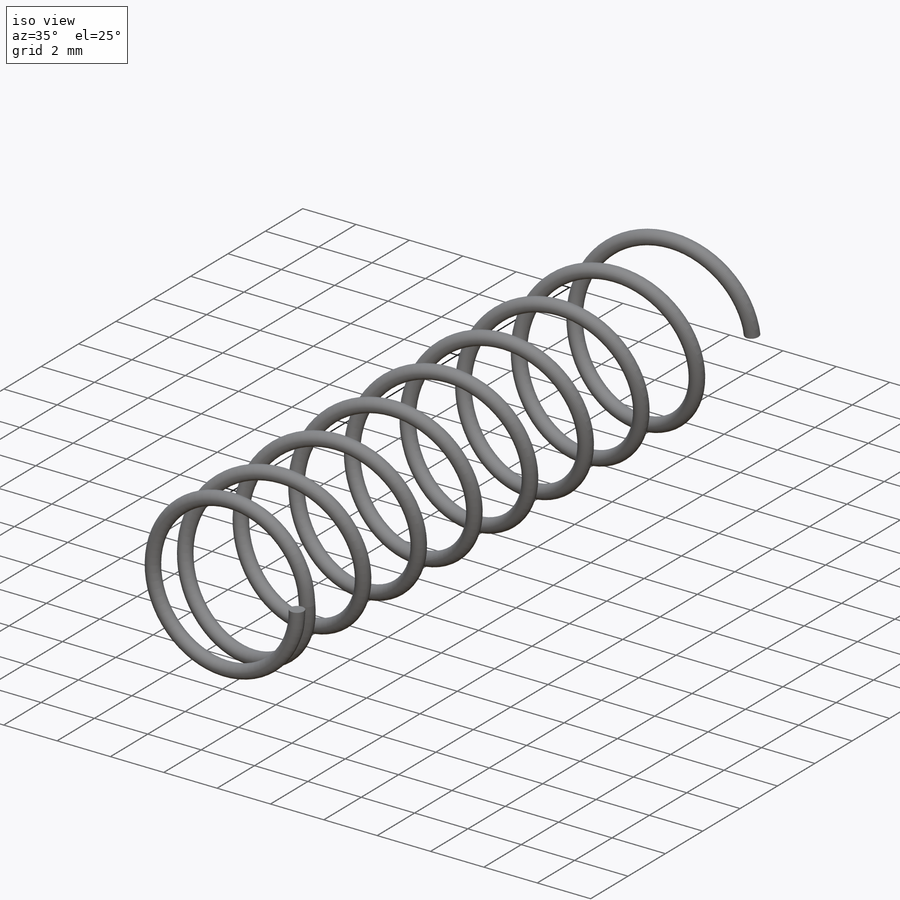
[diagram: iso view]
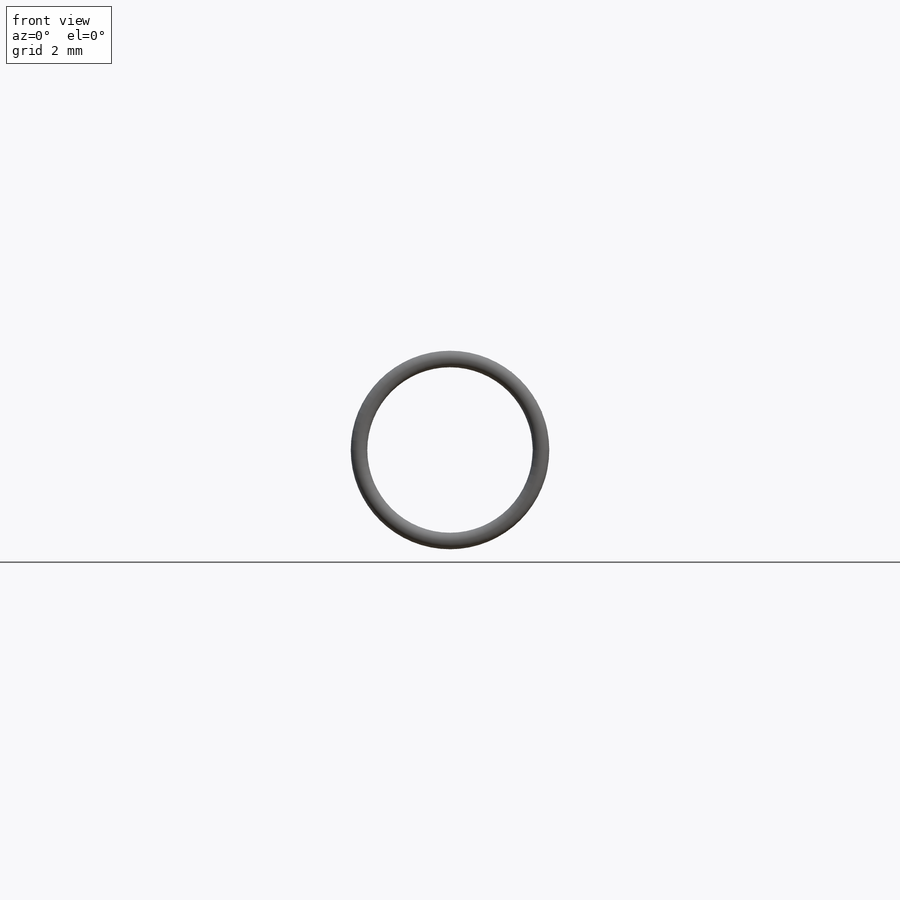
[diagram: front view]
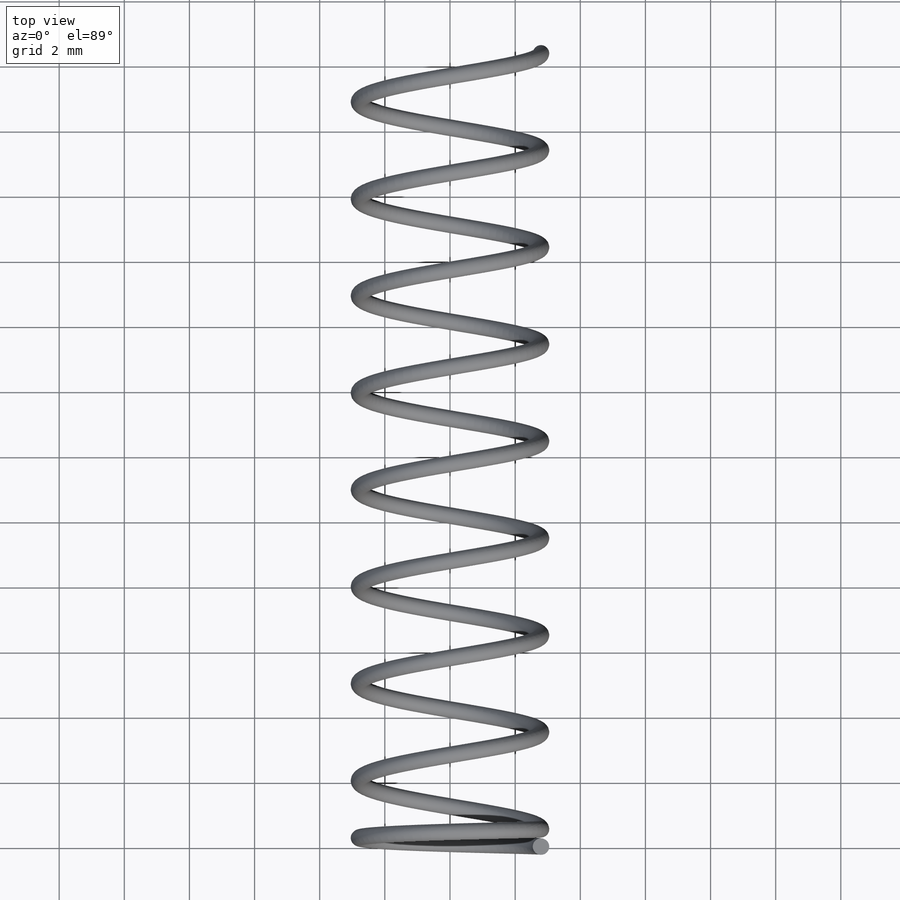
[diagram: top view]
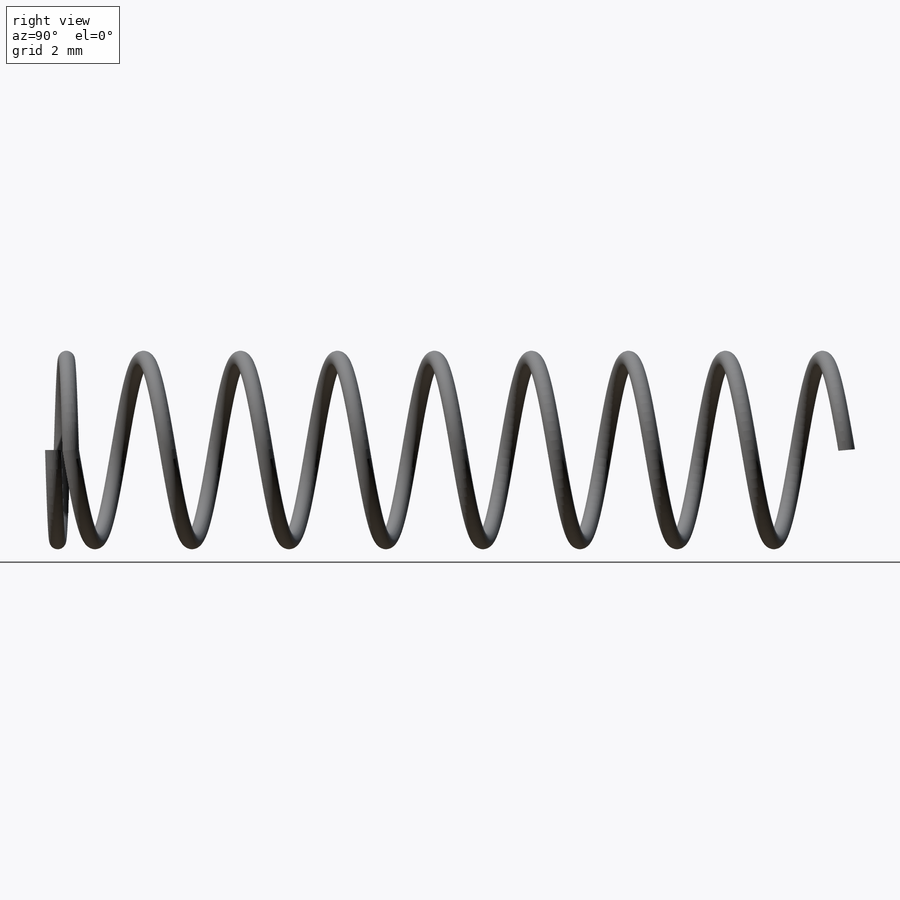
[diagram: right view]
SOLIDWORKS PART (.sldprt)
format: sldprt  version: not decoded by parser v0  size: 1,378,816 bytes
history: native  units: mm
features: sketch x6, helix x3, plane x2, material x1, sweep x1 (+14 scaffold rows collapsed)
feature tree (27):
  scaffold x14  (default folders/planes/origin — collapsed)
  material  "Material <not specified>"
  sketch  "Sketch1"  dims[c1.Wire Dia=0.508mm c1.D3=1.0668mm c1.D4=1.0668mm c1.D1=0.0254mm c1.Spring-OD=6.096mm c1.Overall Height=152.4mm c2.D3=23.8252mm c2.D4=0.5334mm c2.D2=152.4mm c2.D5=152.4mm c2.D6=152.4mm c3.D5=152.4mm c3.D6=152.4mm c4.D5=152.4mm c4.D6=152.4mm c5.D5=152.4mm c5.D6=152.4mm c5.Overall Height=152.4mm c6.Overall Height=25.4mm]
  plane  "Plane1"
  plane  "Plane2"
  sketch  "Sketch2"
  helix  "Helix1"  Pitch=23.8252mm Body Coils=8
  sketch  "Sketch3"
  helix  "Helix2"  Pitch=0.5334mm
  sketch  "Sketch4"
  helix  "Helix3"  Pitch=0.5334mm
  sketch  "Sketch5"
  sweep  "Sweep1"
  sketch  "Sketch6"  dims[D1=0.254mm D2=25.146mm]
decode coverage: 5 of 10 modeling features carry decoded parameters
note: suppression state not decoded; provenance and decode notes live in map.json
